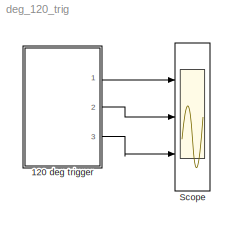
MODEL deg_120_trig
KIND model
CONFIG AbsTol = auto
CONFIG FixedStep = auto
CONFIG MaxStep = auto
CONFIG MinStep = auto
CONFIG RelTol = 1e-3
CONFIG Solver = ode45
CONFIG SolverMode = Auto
CONFIG StartTime = 0.0
CONFIG StopTime = 1.0
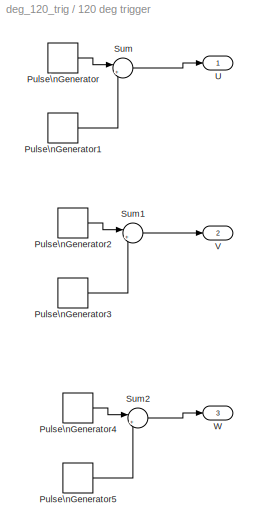
BLOCK [SubSystem] 120 deg trigger
  MaskCallbackString = |
  MaskEnableString = on,on
  MaskIconFrame = on
  MaskIconOpaque = on
  MaskIconRotate = none
  MaskIconUnits = autoscale
  MaskPromptString = Time period|Excitation Voltage
  MaskStyleString = edit,edit
  MaskToolTipString = on,on
  MaskTunableValueString = on,on
  MaskValueString = 1/10|160
  MaskVarAliasString = ,
  MaskVariables = T=@1;V=@2;
  MaskVisibilityString = on,on
  Ports = [0, 3]
  TreatAsAtomicUnit = off
BLOCK [DiscretePulseGenerator] 120 deg trigger/Pulse\nGenerator
  Amplitude = V
  Period = T
  PhaseDelay = T/3
  PulseType = Time based
  PulseWidth = 200/3
BLOCK [DiscretePulseGenerator] 120 deg trigger/Pulse\nGenerator1
  Amplitude = -2*V
  Period = 2*T
  PhaseDelay = -2*T/3
  PulseType = Time based
  PulseWidth = 100/3
BLOCK [DiscretePulseGenerator] 120 deg trigger/Pulse\nGenerator2
  Amplitude = V
  Period = T
  PulseType = Time based
  PulseWidth = 200/3
BLOCK [DiscretePulseGenerator] 120 deg trigger/Pulse\nGenerator3
  Amplitude = -2*V
  Period = 2*T
  PulseType = Time based
  PulseWidth = 100/3
BLOCK [DiscretePulseGenerator] 120 deg trigger/Pulse\nGenerator4
  Amplitude = V
  Period = T
  PhaseDelay = -T/3
  PulseType = Time based
  PulseWidth = 200/3
BLOCK [DiscretePulseGenerator] 120 deg trigger/Pulse\nGenerator5
  Amplitude = -2*V
  Period = 2*T
  PhaseDelay = 2*T/3
  PulseType = Time based
  PulseWidth = 100/3
BLOCK [Sum] 120 deg trigger/Sum
  IconShape = round
  Inputs = |++
  Ports = [2, 1]
BLOCK [Sum] 120 deg trigger/Sum1
  IconShape = round
  Inputs = |++
  Ports = [2, 1]
BLOCK [Sum] 120 deg trigger/Sum2
  IconShape = round
  Inputs = |++
  Ports = [2, 1]
BLOCK [Outport] 120 deg trigger/U
BLOCK [Outport] 120 deg trigger/V
  Port = 2
BLOCK [Outport] 120 deg trigger/W
  Port = 3
BLOCK [Scope] Scope
  DataFormat = StructureWithTime
  NumInputPorts = 3
  Ports = [3]
  YMax = 5~5~5
  YMin = -5~-5~-5
LINE 120 deg trigger/Pulse\nGenerator1:1 -> 120 deg trigger/Sum:2
LINE 120 deg trigger/Pulse\nGenerator2:1 -> 120 deg trigger/Sum1:1
LINE 120 deg trigger/Pulse\nGenerator3:1 -> 120 deg trigger/Sum1:2
LINE 120 deg trigger/Pulse\nGenerator4:1 -> 120 deg trigger/Sum2:1
LINE 120 deg trigger/Pulse\nGenerator5:1 -> 120 deg trigger/Sum2:2
LINE 120 deg trigger/Pulse\nGenerator:1 -> 120 deg trigger/Sum:1
LINE 120 deg trigger/Sum1:1 -> 120 deg trigger/V:1
LINE 120 deg trigger/Sum2:1 -> 120 deg trigger/W:1
LINE 120 deg trigger/Sum:1 -> 120 deg trigger/U:1
LINE 120 deg trigger:1 -> Scope:1
LINE 120 deg trigger:2 -> Scope:2
LINE 120 deg trigger:3 -> Scope:3
